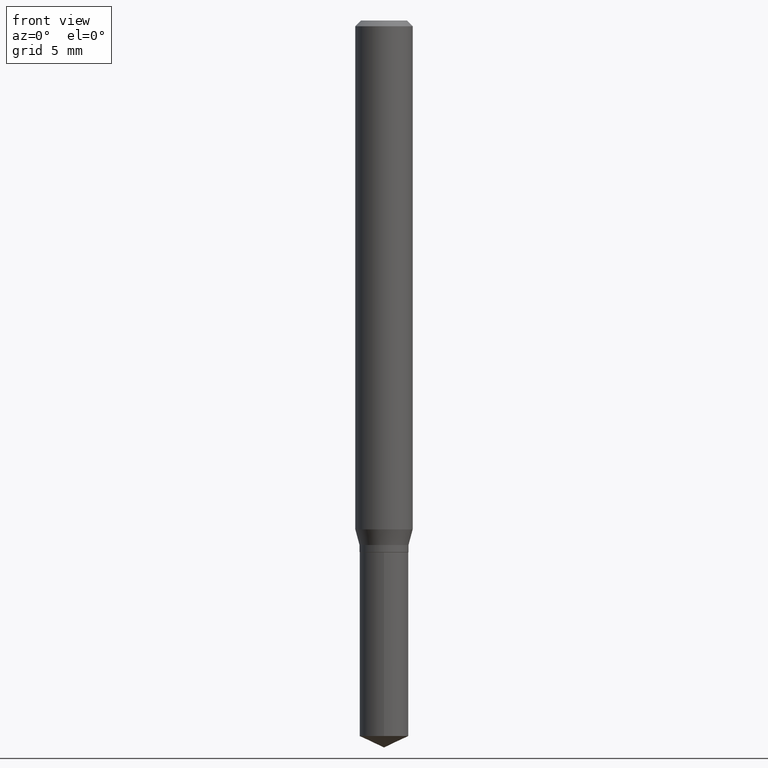
[diagram: clean part render]
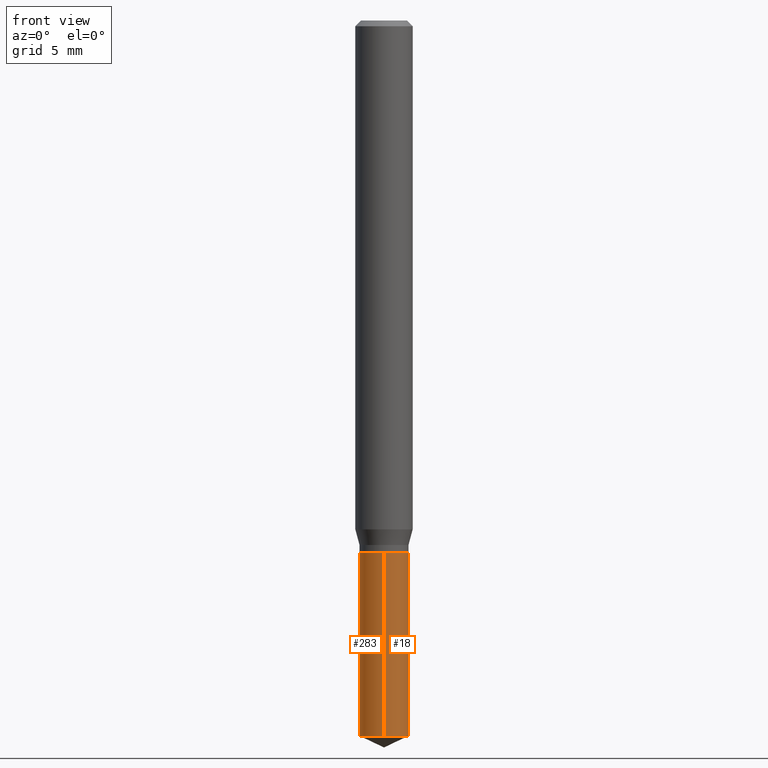
[diagram: same view with one multi-face feature highlighted, each face labeled with its STEP entity id]
A machine part, front view. The highlighted faces form ONE feature: a constant-radius fillet chain: 2 tangent blend faces with common blend radius 1.2802 mm. The faces share edges in the B-rep.
Their STEP definitions:
[1] entity #18 (Cylinder):
#14 = ORIENTED_EDGE ( 'NONE', *, *, #233, .F. ) ;
#18 = ADVANCED_FACE ( 'NONE', ( #247 ), #326, .T. ) ;
#25 = CARTESIAN_POINT ( 'NONE',  ( -3.519413189553610679E-16, -0.05040000000000382369, -1.094499999999999806 ) ) ;
#26 = CARTESIAN_POINT ( 'NONE',  ( 2.676565608369631794E-29, -3.821426325363822773E-15, -1.094499999999999806 ) ) ;
#53 = EDGE_CURVE ( 'NONE', #376, #343, #293, .T. ) ;
#70 = CARTESIAN_POINT ( 'NONE',  ( 2.676565608369631794E-29, -3.821426325363822773E-15, -1.094499999999999806 ) ) ;
#99 = EDGE_LOOP ( 'NONE', ( #297, #207, #14, #360 ) ) ;
#111 = LINE ( 'NONE', #25, #320 ) ;
#137 = CARTESIAN_POINT ( 'NONE',  ( 3.601188957232831225E-29, -5.141554129063645912E-15, -1.472598094028988447 ) ) ;
#171 = DIRECTION ( 'NONE',  ( -6.982962677686266711E-15, -1.000000000000000000, 2.710166660381213313E-15 ) ) ;
#182 = DIRECTION ( 'NONE',  ( -6.982962677686266711E-15, -1.000000000000000000, 5.420333320762426626E-15 ) ) ;
#207 = ORIENTED_EDGE ( 'NONE', *, *, #53, .T. ) ;
#208 = CARTESIAN_POINT ( 'NONE',  ( 3.581135388231172189E-16, 0.05039999999999617702, -1.094500000000000028 ) ) ;
#211 = CARTESIAN_POINT ( 'NONE',  ( 3.581135388231264880E-16, 0.05039999999999486557, -1.472598094028988891 ) ) ;
#218 = VERTEX_POINT ( 'NONE', #432 ) ;
#224 = CARTESIAN_POINT ( 'NONE',  ( -3.519413189553610679E-16, -0.05040000000000382369, -1.094499999999999806 ) ) ;
#228 = AXIS2_PLACEMENT_3D ( 'NONE', #70, #385, #257 ) ;
#233 = EDGE_CURVE ( 'NONE', #250, #343, #427, .T. ) ;
#247 = FACE_OUTER_BOUND ( 'NONE', #99, .T. ) ;
#250 = VERTEX_POINT ( 'NONE', #224 ) ;
#257 = DIRECTION ( 'NONE',  ( -6.982962677686266711E-15, -1.000000000000000000, 2.710166660381213313E-15 ) ) ;
#293 = LINE ( 'NONE', #208, #484 ) ;
#296 = DIRECTION ( 'NONE',  ( -2.445458899330790108E-29, 3.491495526022433205E-15, 1.000000000000000000 ) ) ;
#297 = ORIENTED_EDGE ( 'NONE', *, *, #355, .T. ) ;
#320 = VECTOR ( 'NONE', #474, 39.37007874015748143 ) ;
#326 = CYLINDRICAL_SURFACE ( 'NONE', #401, 0.05040000000000000036 ) ;
#336 = CARTESIAN_POINT ( 'NONE',  ( 3.581135388231265373E-16, 0.05039999999999617702, -1.094500000000000028 ) ) ;
#341 = EDGE_CURVE ( 'NONE', #218, #250, #111, .T. ) ;
#343 = VERTEX_POINT ( 'NONE', #336 ) ;
#355 = EDGE_CURVE ( 'NONE', #218, #376, #359, .T. ) ;
#359 = CIRCLE ( 'NONE', #485, 0.05040000000000000036 ) ;
#360 = ORIENTED_EDGE ( 'NONE', *, *, #341, .F. ) ;
#375 = DIRECTION ( 'NONE',  ( -2.445458899330790108E-29, 3.491495526022433599E-15, 1.000000000000000000 ) ) ;
#376 = VERTEX_POINT ( 'NONE', #211 ) ;
#385 = DIRECTION ( 'NONE',  ( -2.445458899330790108E-29, 3.491495526022433205E-15, 1.000000000000000000 ) ) ;
#401 = AXIS2_PLACEMENT_3D ( 'NONE', #26, #404, #171 ) ;
#404 = DIRECTION ( 'NONE',  ( -2.445458899330790108E-29, 3.491495526022433205E-15, 1.000000000000000000 ) ) ;
#427 = CIRCLE ( 'NONE', #228, 0.05040000000000000036 ) ;
#432 = CARTESIAN_POINT ( 'NONE',  ( -3.519413189553517988E-16, -0.05040000000000514901, -1.472598094028988225 ) ) ;
#474 = DIRECTION ( 'NONE',  ( -2.445458899330790108E-29, 3.491495526022433599E-15, 1.000000000000000000 ) ) ;
#484 = VECTOR ( 'NONE', #375, 39.37007874015748143 ) ;
#485 = AXIS2_PLACEMENT_3D ( 'NONE', #137, #296, #182 ) ;
[2] entity #283 (Cylinder):
#2 = CARTESIAN_POINT ( 'NONE',  ( 2.676565608369631794E-29, -3.821426325363822773E-15, -1.094499999999999806 ) ) ;
#9 = ORIENTED_EDGE ( 'NONE', *, *, #53, .F. ) ;
#25 = CARTESIAN_POINT ( 'NONE',  ( -3.519413189553610679E-16, -0.05040000000000382369, -1.094499999999999806 ) ) ;
#53 = EDGE_CURVE ( 'NONE', #376, #343, #293, .T. ) ;
#54 = ORIENTED_EDGE ( 'NONE', *, *, #341, .T. ) ;
#66 = DIRECTION ( 'NONE',  ( -6.982962677686266711E-15, -1.000000000000000000, 5.420333320762426626E-15 ) ) ;
#111 = LINE ( 'NONE', #25, #320 ) ;
#122 = EDGE_LOOP ( 'NONE', ( #9, #329, #54, #281 ) ) ;
#129 = CIRCLE ( 'NONE', #438, 0.05040000000000000036 ) ;
#131 = DIRECTION ( 'NONE',  ( -6.982962677686266711E-15, -1.000000000000000000, 2.710166660381213313E-15 ) ) ;
#185 = CYLINDRICAL_SURFACE ( 'NONE', #338, 0.05040000000000000036 ) ;
#208 = CARTESIAN_POINT ( 'NONE',  ( 3.581135388231172189E-16, 0.05039999999999617702, -1.094500000000000028 ) ) ;
#210 = CARTESIAN_POINT ( 'NONE',  ( 2.676565608369631794E-29, -3.821426325363822773E-15, -1.094499999999999806 ) ) ;
#211 = CARTESIAN_POINT ( 'NONE',  ( 3.581135388231264880E-16, 0.05039999999999486557, -1.472598094028988891 ) ) ;
#218 = VERTEX_POINT ( 'NONE', #432 ) ;
#221 = AXIS2_PLACEMENT_3D ( 'NONE', #489, #264, #66 ) ;
#224 = CARTESIAN_POINT ( 'NONE',  ( -3.519413189553610679E-16, -0.05040000000000382369, -1.094499999999999806 ) ) ;
#232 = DIRECTION ( 'NONE',  ( -2.445458899330790108E-29, 3.491495526022433205E-15, 1.000000000000000000 ) ) ;
#245 = EDGE_CURVE ( 'NONE', #376, #218, #468, .T. ) ;
#250 = VERTEX_POINT ( 'NONE', #224 ) ;
#264 = DIRECTION ( 'NONE',  ( -2.445458899330790108E-29, 3.491495526022433205E-15, 1.000000000000000000 ) ) ;
#281 = ORIENTED_EDGE ( 'NONE', *, *, #397, .F. ) ;
#283 = ADVANCED_FACE ( 'NONE', ( #490 ), #185, .T. ) ;
#293 = LINE ( 'NONE', #208, #484 ) ;
#320 = VECTOR ( 'NONE', #474, 39.37007874015748143 ) ;
#329 = ORIENTED_EDGE ( 'NONE', *, *, #245, .T. ) ;
#336 = CARTESIAN_POINT ( 'NONE',  ( 3.581135388231265373E-16, 0.05039999999999617702, -1.094500000000000028 ) ) ;
#338 = AXIS2_PLACEMENT_3D ( 'NONE', #2, #232, #456 ) ;
#341 = EDGE_CURVE ( 'NONE', #218, #250, #111, .T. ) ;
#343 = VERTEX_POINT ( 'NONE', #336 ) ;
#375 = DIRECTION ( 'NONE',  ( -2.445458899330790108E-29, 3.491495526022433599E-15, 1.000000000000000000 ) ) ;
#376 = VERTEX_POINT ( 'NONE', #211 ) ;
#397 = EDGE_CURVE ( 'NONE', #343, #250, #129, .T. ) ;
#432 = CARTESIAN_POINT ( 'NONE',  ( -3.519413189553517988E-16, -0.05040000000000514901, -1.472598094028988225 ) ) ;
#438 = AXIS2_PLACEMENT_3D ( 'NONE', #210, #472, #131 ) ;
#456 = DIRECTION ( 'NONE',  ( -6.982962677686266711E-15, -1.000000000000000000, 2.710166660381213313E-15 ) ) ;
#468 = CIRCLE ( 'NONE', #221, 0.05040000000000000036 ) ;
#472 = DIRECTION ( 'NONE',  ( -2.445458899330790108E-29, 3.491495526022433205E-15, 1.000000000000000000 ) ) ;
#474 = DIRECTION ( 'NONE',  ( -2.445458899330790108E-29, 3.491495526022433599E-15, 1.000000000000000000 ) ) ;
#484 = VECTOR ( 'NONE', #375, 39.37007874015748143 ) ;
#489 = CARTESIAN_POINT ( 'NONE',  ( 3.601188957232831225E-29, -5.141554129063645912E-15, -1.472598094028988447 ) ) ;
#490 = FACE_OUTER_BOUND ( 'NONE', #122, .T. ) ;